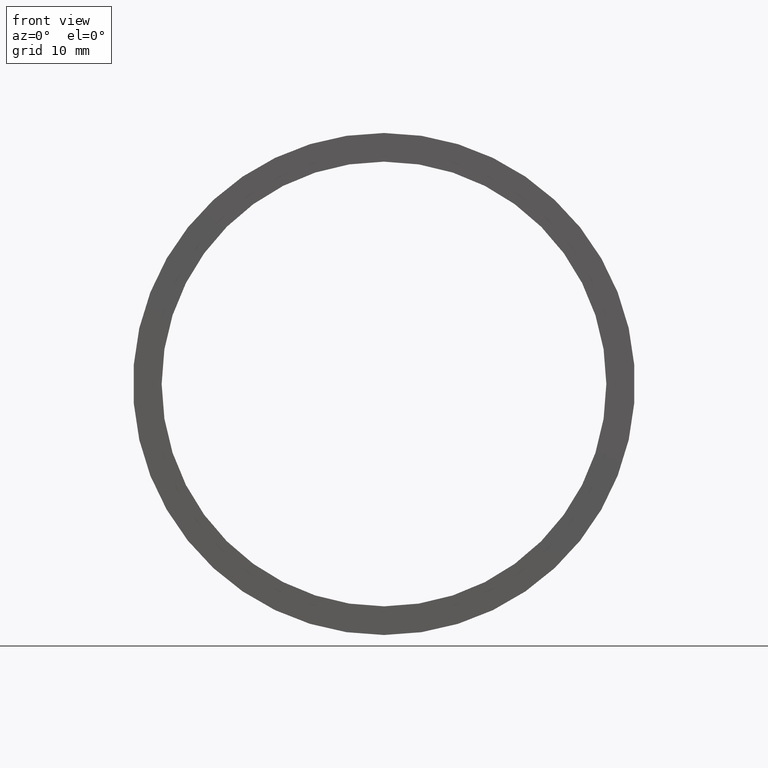
[diagram: clean part render]
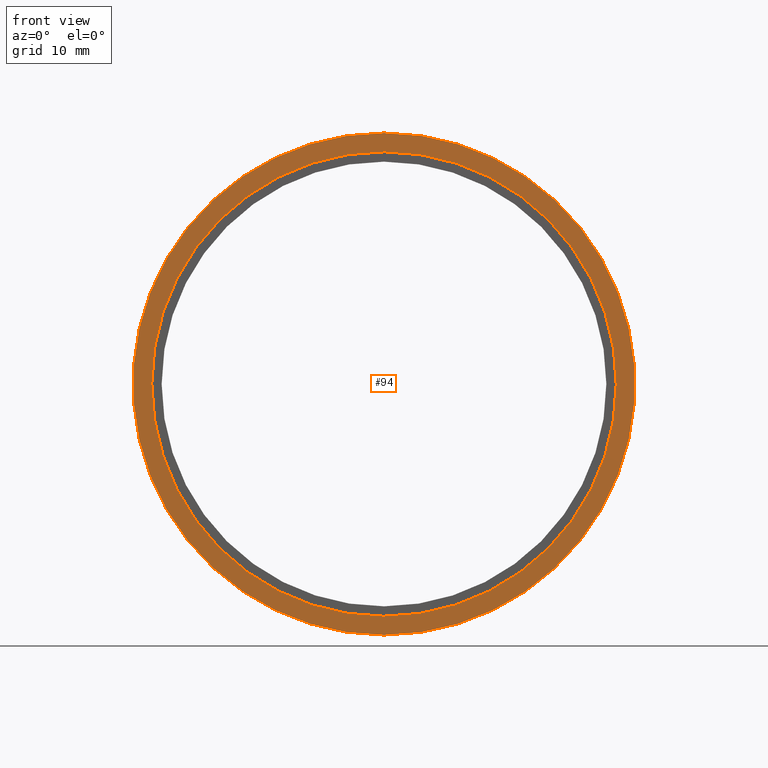
[diagram: same view with one face highlighted and labeled with its STEP entity id]
A machine part, front view. The second image highlights one B-rep face of the part: STEP entity #94.
In plain terms, the highlighted planar face has unit normal (-0, 1, 0).
Its self-contained STEP definition (entity closure, byte-faithful):
#46 = CARTESIAN_POINT ( 'NONE',  ( 2.877919977996282700E-015, -2.775557561562891400E-014, -23.50000000000002100 ) ) ;
#74 = AXIS2_PLACEMENT_3D ( 'NONE', #535, #587, #355 ) ;
#94 = ADVANCED_FACE ( 'NONE', ( #235, #156 ), #447, .F. ) ;
#115 = DIRECTION ( 'NONE',  ( 0.0000000000000000000, 0.0000000000000000000, 1.000000000000000000 ) ) ;
#120 = AXIS2_PLACEMENT_3D ( 'NONE', #219, #276, #361 ) ;
#123 = DIRECTION ( 'NONE',  ( 0.0000000000000000000, 0.0000000000000000000, 1.000000000000000000 ) ) ;
#132 = EDGE_CURVE ( 'NONE', #425, #460, #417, .T. ) ;
#134 = AXIS2_PLACEMENT_3D ( 'NONE', #592, #314, #317 ) ;
#148 = CIRCLE ( 'NONE', #134, 25.40000000000001300 ) ;
#155 = VERTEX_POINT ( 'NONE', #229 ) ;
#156 = FACE_BOUND ( 'NONE', #387, .T. ) ;
#159 = CIRCLE ( 'NONE', #577, 25.40000000000001300 ) ;
#197 = EDGE_CURVE ( 'NONE', #460, #425, #230, .T. ) ;
#219 = CARTESIAN_POINT ( 'NONE',  ( 0.0000000000000000000, -2.775557561562891400E-014, 0.0000000000000000000 ) ) ;
#221 = CARTESIAN_POINT ( 'NONE',  ( 0.0000000000000000000, -2.775557561562891400E-014, 23.50000000000002100 ) ) ;
#229 = CARTESIAN_POINT ( 'NONE',  ( 3.110602869834278800E-015, -2.775557561562891400E-014, -25.40000000000001300 ) ) ;
#230 = CIRCLE ( 'NONE', #120, 23.50000000000002100 ) ;
#235 = FACE_OUTER_BOUND ( 'NONE', #250, .T. ) ;
#240 = EDGE_CURVE ( 'NONE', #353, #155, #159, .T. ) ;
#250 = EDGE_LOOP ( 'NONE', ( #562, #440 ) ) ;
#255 = AXIS2_PLACEMENT_3D ( 'NONE', #310, #256, #115 ) ;
#256 = DIRECTION ( 'NONE',  ( -0.0000000000000000000, 1.000000000000000000, 0.0000000000000000000 ) ) ;
#276 = DIRECTION ( 'NONE',  ( -0.0000000000000000000, 1.000000000000000000, -0.0000000000000000000 ) ) ;
#310 = CARTESIAN_POINT ( 'NONE',  ( 23.50000000000002100, -1.436345924723669800E-014, 0.0000000000000000000 ) ) ;
#314 = DIRECTION ( 'NONE',  ( -0.0000000000000000000, 1.000000000000000000, -0.0000000000000000000 ) ) ;
#317 = DIRECTION ( 'NONE',  ( 0.0000000000000000000, 0.0000000000000000000, 1.000000000000000000 ) ) ;
#353 = VERTEX_POINT ( 'NONE', #612 ) ;
#355 = DIRECTION ( 'NONE',  ( 0.0000000000000000000, 0.0000000000000000000, 1.000000000000000000 ) ) ;
#361 = DIRECTION ( 'NONE',  ( 0.0000000000000000000, 0.0000000000000000000, 1.000000000000000000 ) ) ;
#365 = DIRECTION ( 'NONE',  ( -0.0000000000000000000, 1.000000000000000000, -0.0000000000000000000 ) ) ;
#376 = ORIENTED_EDGE ( 'NONE', *, *, #132, .T. ) ;
#382 = ORIENTED_EDGE ( 'NONE', *, *, #197, .T. ) ;
#387 = EDGE_LOOP ( 'NONE', ( #376, #382 ) ) ;
#399 = EDGE_CURVE ( 'NONE', #155, #353, #148, .T. ) ;
#414 = CARTESIAN_POINT ( 'NONE',  ( 0.0000000000000000000, -2.775557561562891400E-014, 0.0000000000000000000 ) ) ;
#417 = CIRCLE ( 'NONE', #74, 23.50000000000002100 ) ;
#425 = VERTEX_POINT ( 'NONE', #221 ) ;
#440 = ORIENTED_EDGE ( 'NONE', *, *, #399, .F. ) ;
#447 = PLANE ( 'NONE',  #255 ) ;
#460 = VERTEX_POINT ( 'NONE', #46 ) ;
#535 = CARTESIAN_POINT ( 'NONE',  ( 0.0000000000000000000, -2.775557561562891400E-014, 0.0000000000000000000 ) ) ;
#562 = ORIENTED_EDGE ( 'NONE', *, *, #240, .F. ) ;
#577 = AXIS2_PLACEMENT_3D ( 'NONE', #414, #365, #123 ) ;
#587 = DIRECTION ( 'NONE',  ( -0.0000000000000000000, 1.000000000000000000, -0.0000000000000000000 ) ) ;
#592 = CARTESIAN_POINT ( 'NONE',  ( 0.0000000000000000000, -2.775557561562891400E-014, 0.0000000000000000000 ) ) ;
#612 = CARTESIAN_POINT ( 'NONE',  ( 0.0000000000000000000, -2.775557561562891400E-014, 25.40000000000001300 ) ) ;